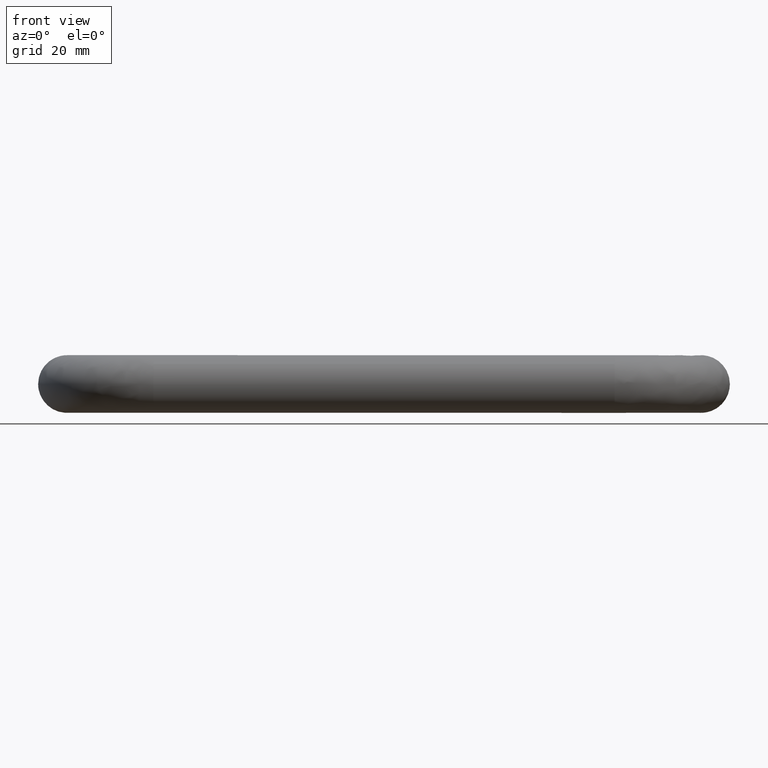
[diagram: clean part render]
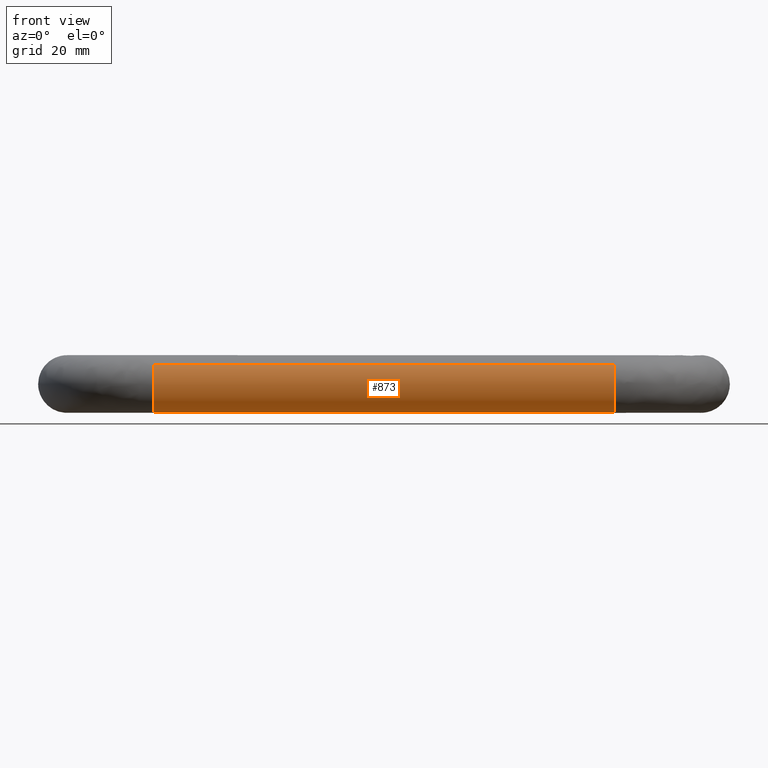
[diagram: same view with one face highlighted and labeled with its STEP entity id]
A machine part, front view. The second image highlights one B-rep face of the part: STEP entity #873.
In plain terms, the highlighted face is a freeform B-spline surface patch.
Its self-contained STEP definition (entity closure, byte-faithful):
#646=CARTESIAN_POINT('',(95.0,-38.626872467427603,3.441772233169235));
#647=VERTEX_POINT('',#646);
#648=CARTESIAN_POINT('',(95.000000000000028,-30.369262203831472,1.885806846711061));
#649=VERTEX_POINT('',#648);
#665=CARTESIAN_POINT('',(14.999999999979890,-30.369264401945401,1.885812244307645));
#666=VERTEX_POINT('',#665);
#667=CARTESIAN_POINT('',(14.999999999979890,-30.369264401945401,1.885812244307645));
#668=CARTESIAN_POINT('',(95.000000000000028,-30.369262203831472,1.885806846711061));
#669=QUASI_UNIFORM_CURVE('',1,(#667,#668),.UNSPECIFIED.,.F.,.U.);
#670=EDGE_CURVE('',#666,#649,#669,.T.);
#687=CARTESIAN_POINT('',(14.999999999999989,-38.626872474896267,3.441772225298902));
#688=VERTEX_POINT('',#687);
#704=CARTESIAN_POINT('',(14.999999999999989,-38.626872474896267,3.441772225298902));
#705=CARTESIAN_POINT('',(95.0,-38.626872467427603,3.441772233169235));
#706=QUASI_UNIFORM_CURVE('',1,(#704,#705),.UNSPECIFIED.,.F.,.U.);
#707=EDGE_CURVE('',#688,#647,#706,.T.);
#712=CARTESIAN_POINT('',(12.999999999724411,-38.626871855061438,3.441772878468769));
#713=CARTESIAN_POINT('',(12.999999999724411,-42.068644733530206,-0.185098976592668));
#714=CARTESIAN_POINT('',(12.999999999724411,-38.441772878468768,-3.626871855061437));
#715=CARTESIAN_POINT('',(12.999999999724411,-34.814901023407330,-7.068644733530205));
#716=CARTESIAN_POINT('',(12.999999999724411,-31.373128144938558,-3.441772878468769));
#717=CARTESIAN_POINT('',(12.999999999724409,-29.152589316074675,-1.101813193197331));
#718=CARTESIAN_POINT('',(12.999999999724407,-30.369264401920713,1.885812244281298));
#719=CARTESIAN_POINT('',(97.050000000006904,-38.626871855061417,3.441772878468769));
#720=CARTESIAN_POINT('',(97.050000000006904,-42.068644733530192,-0.185098976592668));
#721=CARTESIAN_POINT('',(97.050000000006904,-38.441772878468747,-3.626871855061437));
#722=CARTESIAN_POINT('',(97.050000000006904,-34.814901023407316,-7.068644733530205));
#723=CARTESIAN_POINT('',(97.050000000006904,-31.373128144938551,-3.441772878468769));
#724=CARTESIAN_POINT('',(97.050000000006904,-29.152589316074646,-1.101813193197331));
#725=CARTESIAN_POINT('',(97.050000000006904,-30.369264401920702,1.885812244281298));
#733=(BOUNDED_SURFACE()B_SPLINE_SURFACE(2,1,((#712,#719),(#713,#720),(#714,#721),(#715,#722),(#716,#723),(#717,#724),(#718,#725)),.UNSPECIFIED.,.F.,.F.,.U.)B_SPLINE_SURFACE_WITH_KNOTS((3,2,2,3),(2,2),(0.0,8.284271247461899,16.568542494923800,22.533217793096370),(0.0,84.050000000282509),.UNSPECIFIED.)GEOMETRIC_REPRESENTATION_ITEM()RATIONAL_B_SPLINE_SURFACE(((1.0,1.0),(0.707106781186548,0.707106781186548),(1.0,1.0),(0.707106781186548,0.707106781186548),(1.0,1.0),(0.789116882454314,0.789116882454314),(0.881905454174416,0.881905454174416)))REPRESENTATION_ITEM('')SURFACE());
#734=CARTESIAN_POINT('',(95.0,-30.0,0.0));
#735=VERTEX_POINT('',#734);
#736=CARTESIAN_POINT('',(95.000000000000028,-30.369262203831475,1.885806846711061));
#737=CARTESIAN_POINT('',(95.0,-30.000000000000007,0.979056270985784));
#738=CARTESIAN_POINT('',(95.0,-30.0,0.0));
#746=(BOUNDED_CURVE()B_SPLINE_CURVE(2,(#736,#737,#738),.UNSPECIFIED.,.F.,.U.)B_SPLINE_CURVE_WITH_KNOTS((3,3),(0.935964072496471,1.0),.UNSPECIFIED.)CURVE()GEOMETRIC_REPRESENTATION_ITEM()RATIONAL_B_SPLINE_CURVE((0.888387702553740,0.924977244295146,1.0))REPRESENTATION_ITEM(''));
#747=EDGE_CURVE('',#649,#735,#746,.T.);
#748=ORIENTED_EDGE('',*,*,#747,.T.);
#749=CARTESIAN_POINT('',(94.999999999759581,-30.423794137096351,-2.014532179024760));
#750=VERTEX_POINT('',#749);
#751=CARTESIAN_POINT('',(95.0,-30.0,0.0));
#752=CARTESIAN_POINT('',(95.000000000000014,-30.000000000000004,-1.051842560803429));
#753=CARTESIAN_POINT('',(94.999999999759581,-30.423794137096355,-2.014532179024760));
#761=(BOUNDED_CURVE()B_SPLINE_CURVE(2,(#751,#752,#753),.UNSPECIFIED.,.F.,.U.)B_SPLINE_CURVE_WITH_KNOTS((3,3),(0.0,0.068414990169706),.UNSPECIFIED.)CURVE()GEOMETRIC_REPRESENTATION_ITEM()RATIONAL_B_SPLINE_CURVE((1.0,0.919846853256416,0.883563120485099))REPRESENTATION_ITEM(''));
#762=EDGE_CURVE('',#735,#750,#761,.T.);
#763=ORIENTED_EDGE('',*,*,#762,.T.);
#764=CARTESIAN_POINT('',(94.999999999951314,-37.014532178804032,-4.576205863000821));
#765=VERTEX_POINT('',#764);
#766=CARTESIAN_POINT('',(94.999999999759581,-30.423794137096348,-2.014532179024761));
#767=CARTESIAN_POINT('',(95.0,-31.738053411395736,-5.0));
#768=CARTESIAN_POINT('',(95.0,-35.0,-5.0));
#769=CARTESIAN_POINT('',(95.000000000000014,-36.051842560551592,-5.0));
#770=CARTESIAN_POINT('',(94.999999999951314,-37.014532178804025,-4.576205863000821));
#778=(BOUNDED_CURVE()B_SPLINE_CURVE(2,(#766,#767,#768,#769,#770),.UNSPECIFIED.,.F.,.U.)B_SPLINE_CURVE_WITH_KNOTS((3,2,3),(0.068414990169706,0.250000000000000,0.318414990154638),.UNSPECIFIED.)CURVE()GEOMETRIC_REPRESENTATION_ITEM()RATIONAL_B_SPLINE_CURVE((0.883563120485099,0.787259927930131,1.0,0.919846853274069,0.883563120501081))REPRESENTATION_ITEM(''));
#779=EDGE_CURVE('',#750,#765,#778,.T.);
#780=ORIENTED_EDGE('',*,*,#779,.T.);
#781=CARTESIAN_POINT('',(95.0,-40.0,0.0));
#782=VERTEX_POINT('',#781);
#783=CARTESIAN_POINT('',(94.999999999951314,-37.014532178804032,-4.576205863000821));
#784=CARTESIAN_POINT('',(95.000000000000014,-40.0,-3.261946588948088));
#785=CARTESIAN_POINT('',(95.0,-40.0,0.0));
#793=(BOUNDED_CURVE()B_SPLINE_CURVE(2,(#783,#784,#785),.UNSPECIFIED.,.F.,.U.)B_SPLINE_CURVE_WITH_KNOTS((3,3),(0.318414990154638,0.500000000000000),.UNSPECIFIED.)CURVE()GEOMETRIC_REPRESENTATION_ITEM()RATIONAL_B_SPLINE_CURVE((0.883563120501081,0.787259927912478,1.0))REPRESENTATION_ITEM(''));
#794=EDGE_CURVE('',#765,#782,#793,.T.);
#795=ORIENTED_EDGE('',*,*,#794,.T.);
#796=CARTESIAN_POINT('',(95.0,-40.0,0.0));
#797=CARTESIAN_POINT('',(95.0,-39.999999999999993,1.994796698661975));
#798=CARTESIAN_POINT('',(95.0,-38.626872467427603,3.441772233169235));
#806=(BOUNDED_CURVE()B_SPLINE_CURVE(2,(#796,#797,#798),.UNSPECIFIED.,.F.,.U.)B_SPLINE_CURVE_WITH_KNOTS((3,3),(0.500000000000000,0.621049472957233),.UNSPECIFIED.)CURVE()GEOMETRIC_REPRESENTATION_ITEM()RATIONAL_B_SPLINE_CURVE((1.0,0.858181720919536,0.853699665346208))REPRESENTATION_ITEM(''));
#807=EDGE_CURVE('',#782,#647,#806,.T.);
#808=ORIENTED_EDGE('',*,*,#807,.T.);
#809=ORIENTED_EDGE('',*,*,#707,.F.);
#810=CARTESIAN_POINT('',(15.0,-40.0,0.0));
#811=VERTEX_POINT('',#810);
#812=CARTESIAN_POINT('',(15.0,-40.0,0.0));
#813=CARTESIAN_POINT('',(15.000000000000002,-39.999999999999993,1.994796686084962));
#814=CARTESIAN_POINT('',(14.999999999999991,-38.626872474896267,3.441772225298903));
#822=(BOUNDED_CURVE()B_SPLINE_CURVE(2,(#812,#813,#814),.UNSPECIFIED.,.F.,.U.)B_SPLINE_CURVE_WITH_KNOTS((3,3),(0.500000000000000,0.621049472302264),.UNSPECIFIED.)CURVE()GEOMETRIC_REPRESENTATION_ITEM()RATIONAL_B_SPLINE_CURVE((1.0,0.858181721686881,0.853699665394711))REPRESENTATION_ITEM(''));
#823=EDGE_CURVE('',#811,#688,#822,.T.);
#824=ORIENTED_EDGE('',*,*,#823,.F.);
#825=CARTESIAN_POINT('',(14.999999999939860,-35.348666258398268,-4.987828369165738));
#826=VERTEX_POINT('',#825);
#827=CARTESIAN_POINT('',(14.999999999939867,-35.348666258398275,-4.987828369165738));
#828=CARTESIAN_POINT('',(15.000000000000004,-39.999999999999993,-4.662684235356530));
#829=CARTESIAN_POINT('',(15.0,-40.0,0.0));
#837=(BOUNDED_CURVE()B_SPLINE_CURVE(2,(#827,#828,#829),.UNSPECIFIED.,.F.,.U.)B_SPLINE_CURVE_WITH_KNOTS((3,3),(0.262166313500798,0.500000000000000),.UNSPECIFIED.)CURVE()GEOMETRIC_REPRESENTATION_ITEM()RATIONAL_B_SPLINE_CURVE((0.972879876311066,0.721360504075917,1.0))REPRESENTATION_ITEM(''));
#838=EDGE_CURVE('',#826,#811,#837,.T.);
#839=ORIENTED_EDGE('',*,*,#838,.F.);
#840=CARTESIAN_POINT('',(15.0,-30.0,0.0));
#841=VERTEX_POINT('',#840);
#842=CARTESIAN_POINT('',(15.0,-30.0,0.0));
#843=CARTESIAN_POINT('',(14.999999999999995,-30.000000000000004,-5.000000000000001));
#844=CARTESIAN_POINT('',(15.0,-35.0,-5.0));
#845=CARTESIAN_POINT('',(15.000000000000005,-35.174545579896524,-5.0));
#846=CARTESIAN_POINT('',(14.999999999939860,-35.348666258398268,-4.987828369165738));
#854=(BOUNDED_CURVE()B_SPLINE_CURVE(2,(#842,#843,#844,#845,#846),.UNSPECIFIED.,.F.,.U.)B_SPLINE_CURVE_WITH_KNOTS((3,2,3),(0.0,0.250000000000000,0.262166313500798),.UNSPECIFIED.)CURVE()GEOMETRIC_REPRESENTATION_ITEM()RATIONAL_B_SPLINE_CURVE((1.0,0.707106781186548,1.0,0.985746277110630,0.972879876311065))REPRESENTATION_ITEM(''));
#855=EDGE_CURVE('',#841,#826,#854,.T.);
#856=ORIENTED_EDGE('',*,*,#855,.F.);
#857=CARTESIAN_POINT('',(14.999999999979885,-30.369264401945404,1.885812244307645));
#858=CARTESIAN_POINT('',(15.0,-30.000000000000007,0.979059296734256));
#859=CARTESIAN_POINT('',(15.0,-30.0,0.0));
#867=(BOUNDED_CURVE()B_SPLINE_CURVE(2,(#857,#858,#859),.UNSPECIFIED.,.F.,.U.)B_SPLINE_CURVE_WITH_KNOTS((3,3),(0.935963889442219,1.0),.UNSPECIFIED.)CURVE()GEOMETRIC_REPRESENTATION_ITEM()RATIONAL_B_SPLINE_CURVE((0.888387493363012,0.924977029833749,1.0))REPRESENTATION_ITEM(''));
#868=EDGE_CURVE('',#666,#841,#867,.T.);
#869=ORIENTED_EDGE('',*,*,#868,.F.);
#870=ORIENTED_EDGE('',*,*,#670,.T.);
#871=EDGE_LOOP('',(#748,#763,#780,#795,#808,#809,#824,#839,#856,#869,#870));
#872=FACE_OUTER_BOUND('',#871,.T.);
#873=ADVANCED_FACE('',(#872),#733,.T.);